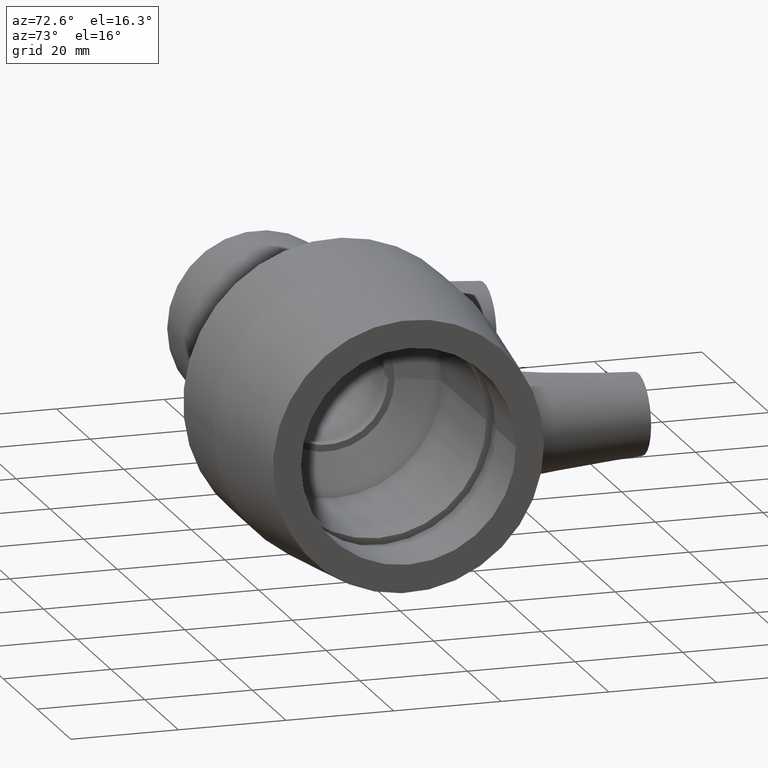
[diagram: clean part render]
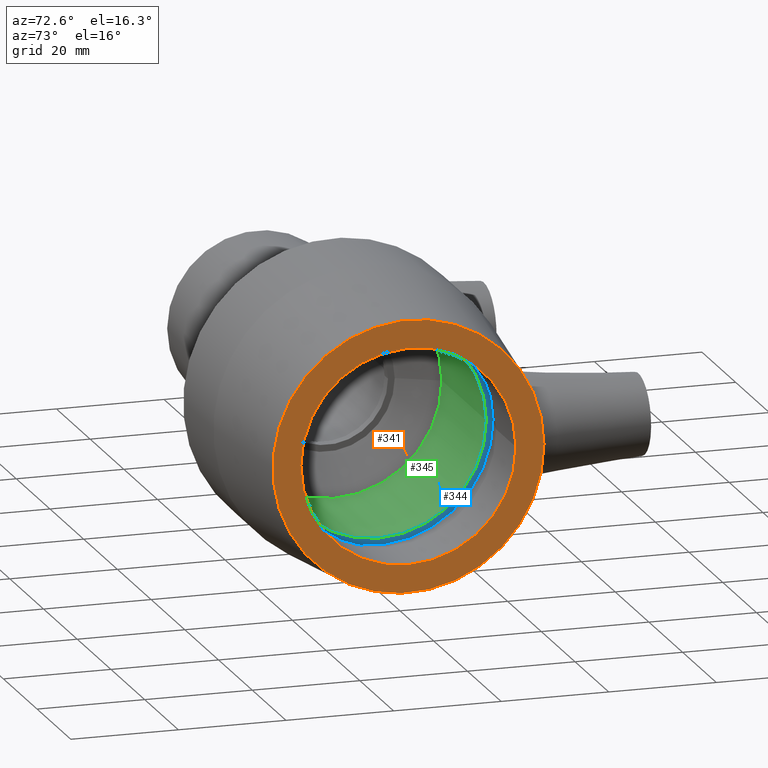
[diagram: same view with three faces highlighted in distinct colors, each labeled with its STEP entity id]
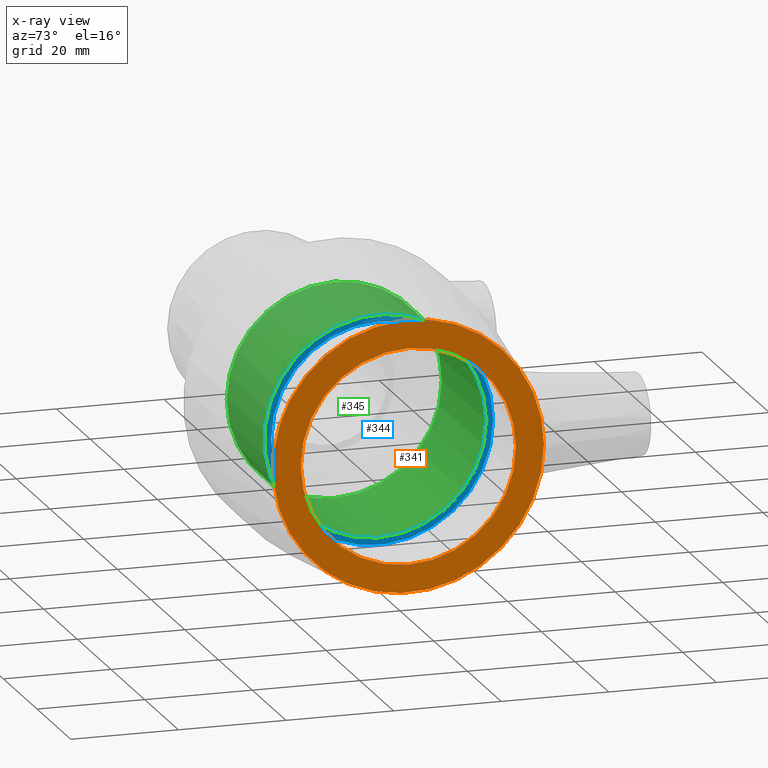
[diagram: x-ray of the same camera — body ghosted, the three highlighted faces saturated]
A machine part, auxiliary view with three faces highlighted in distinct colors.
The next image is the same camera in x-ray (body ghosted, the three faces saturated) — at least one of them is partly hidden behind the body in this view.
Their STEP definitions:

[orange] entity #341 — the highlighted planar face has unit normal (1, 0, 0).
#40=FACE_BOUND('',#130,.T.);
#83=FACE_OUTER_BOUND('',#129,.T.);
#129=EDGE_LOOP('',(#282));
#130=EDGE_LOOP('',(#283));
#174=CIRCLE('',#388,25.2);
#175=CIRCLE('',#390,20.);
#205=VERTEX_POINT('',#659);
#206=VERTEX_POINT('',#662);
#236=EDGE_CURVE('',#205,#205,#174,.T.);
#237=EDGE_CURVE('',#206,#206,#175,.T.);
#282=ORIENTED_EDGE('',*,*,#236,.T.);
#283=ORIENTED_EDGE('',*,*,#237,.F.);
#319=PLANE('',#389);
#341=ADVANCED_FACE('',(#83,#40),#319,.T.);
#388=AXIS2_PLACEMENT_3D('',#660,#480,#481);
#389=AXIS2_PLACEMENT_3D('',#661,#482,#483);
#390=AXIS2_PLACEMENT_3D('',#663,#484,#485);
#480=DIRECTION('center_axis',(1.,1.83697019872103E-16,0.));
#481=DIRECTION('ref_axis',(0.,0.,-1.));
#482=DIRECTION('center_axis',(1.,1.83697019872103E-16,0.));
#483=DIRECTION('ref_axis',(0.,0.,-1.));
#484=DIRECTION('center_axis',(1.,1.83697019872103E-16,0.));
#485=DIRECTION('ref_axis',(0.,0.,-1.));
#659=CARTESIAN_POINT('',(45.,25.2,0.));
#660=CARTESIAN_POINT('Origin',(45.,1.65327317884893E-14,0.));
#661=CARTESIAN_POINT('Origin',(45.,20.,0.));
#662=CARTESIAN_POINT('',(45.,20.,0.));
#663=CARTESIAN_POINT('Origin',(45.,1.65327317884893E-14,0.));

[blue] entity #344 — the highlighted planar face has unit normal (1, 0, 0).
#43=FACE_BOUND('',#136,.T.);
#86=FACE_OUTER_BOUND('',#135,.T.);
#135=EDGE_LOOP('',(#288));
#136=EDGE_LOOP('',(#289));
#177=CIRCLE('',#394,21.2469984951308);
#178=CIRCLE('',#396,20.);
#208=VERTEX_POINT('',#668);
#209=VERTEX_POINT('',#671);
#239=EDGE_CURVE('',#208,#208,#177,.T.);
#240=EDGE_CURVE('',#209,#209,#178,.T.);
#288=ORIENTED_EDGE('',*,*,#239,.T.);
#289=ORIENTED_EDGE('',*,*,#240,.F.);
#320=PLANE('',#395);
#344=ADVANCED_FACE('',(#86,#43),#320,.T.);
#394=AXIS2_PLACEMENT_3D('',#669,#492,#493);
#395=AXIS2_PLACEMENT_3D('',#670,#494,#495);
#396=AXIS2_PLACEMENT_3D('',#672,#496,#497);
#492=DIRECTION('center_axis',(1.,1.83697019872103E-16,0.));
#493=DIRECTION('ref_axis',(0.,0.,-1.));
#494=DIRECTION('center_axis',(1.,1.83697019872103E-16,0.));
#495=DIRECTION('ref_axis',(0.,0.,-1.));
#496=DIRECTION('center_axis',(1.,1.83697019872103E-16,0.));
#497=DIRECTION('ref_axis',(0.,0.,-1.));
#668=CARTESIAN_POINT('',(27.4,21.2469984951308,0.));
#669=CARTESIAN_POINT('Origin',(27.4,1.32996642387403E-14,0.));
#670=CARTESIAN_POINT('Origin',(27.4,20.,0.));
#671=CARTESIAN_POINT('',(27.4,20.,0.));
#672=CARTESIAN_POINT('Origin',(27.4,1.32996642387403E-14,0.));

[green] entity #345 — the highlighted cylindrical surface (bore or boss wall) has radius 20 mm, axis along (1, 0, 0).
#44=FACE_BOUND('',#138,.T.);
#63=CYLINDRICAL_SURFACE('',#397,20.);
#87=FACE_OUTER_BOUND('',#137,.T.);
#137=EDGE_LOOP('',(#290));
#138=EDGE_LOOP('',(#291));
#178=CIRCLE('',#396,20.);
#179=CIRCLE('',#398,20.);
#209=VERTEX_POINT('',#671);
#210=VERTEX_POINT('',#674);
#240=EDGE_CURVE('',#209,#209,#178,.T.);
#241=EDGE_CURVE('',#210,#210,#179,.T.);
#290=ORIENTED_EDGE('',*,*,#241,.F.);
#291=ORIENTED_EDGE('',*,*,#240,.T.);
#345=ADVANCED_FACE('',(#87,#44),#63,.F.);
#396=AXIS2_PLACEMENT_3D('',#672,#496,#497);
#397=AXIS2_PLACEMENT_3D('',#673,#498,#499);
#398=AXIS2_PLACEMENT_3D('',#675,#500,#501);
#496=DIRECTION('center_axis',(1.,1.83697019872103E-16,0.));
#497=DIRECTION('ref_axis',(0.,0.,-1.));
#498=DIRECTION('center_axis',(1.,1.83697019872103E-16,0.));
#499=DIRECTION('ref_axis',(-1.27220423054671E-16,1.,0.));
#500=DIRECTION('center_axis',(1.,1.83697019872103E-16,0.));
#501=DIRECTION('ref_axis',(0.,0.,-1.));
#671=CARTESIAN_POINT('',(27.4,20.,0.));
#672=CARTESIAN_POINT('Origin',(27.4,1.32996642387403E-14,0.));
#673=CARTESIAN_POINT('Origin',(14.2,1.08748635764285E-14,0.));
#674=CARTESIAN_POINT('',(0.999999999999979,20.,0.));
#675=CARTESIAN_POINT('Origin',(0.999999999999983,8.45006291411673E-15,0.));